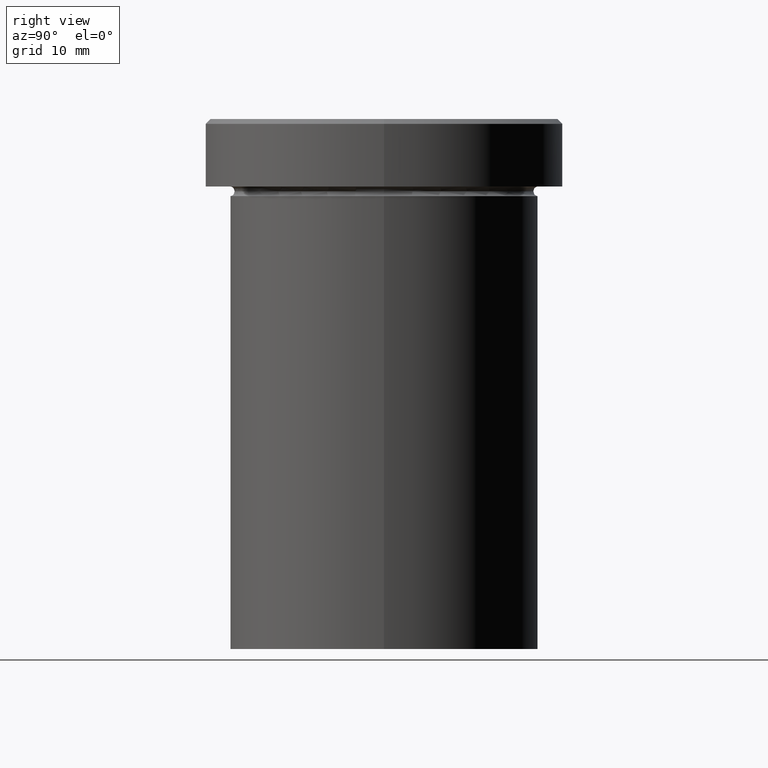
[diagram: clean part render]
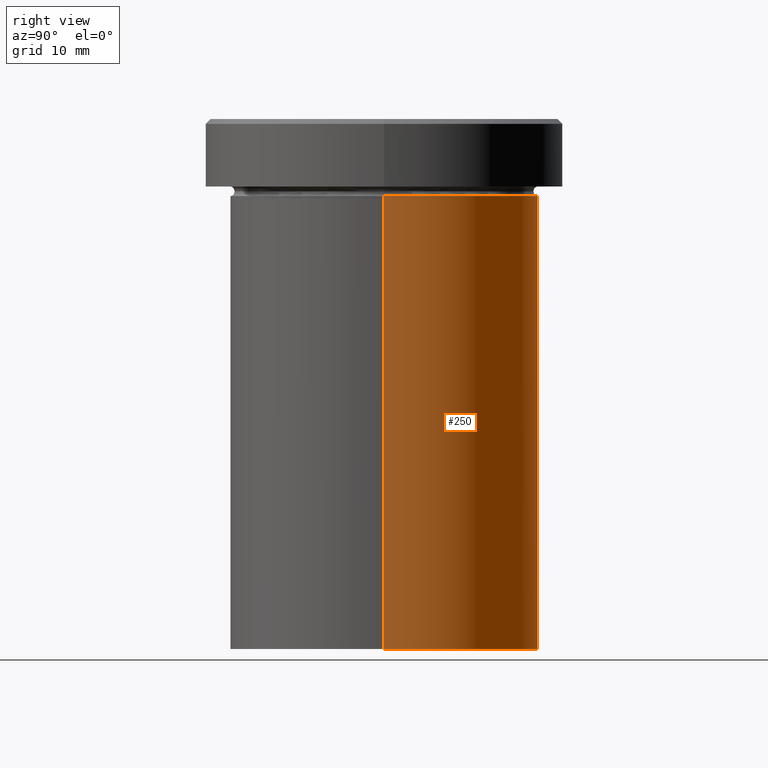
[diagram: same view with one face highlighted and labeled with its STEP entity id]
A machine part, right view. The second image highlights one B-rep face of the part: STEP entity #250.
In plain terms, the highlighted cylindrical surface (partial cylindrical patch) has radius 16 mm, axis along (-0, -0, 1).
Its self-contained STEP definition (entity closure, byte-faithful):
#12 = ORIENTED_EDGE ( 'NONE', *, *, #398, .T. ) ;
#14 = CYLINDRICAL_SURFACE ( 'NONE', #245, 16.00000000000000000 ) ;
#15 = ORIENTED_EDGE ( 'NONE', *, *, #108, .F. ) ;
#24 = VERTEX_POINT ( 'NONE', #365 ) ;
#30 = LINE ( 'NONE', #289, #280 ) ;
#52 = CIRCLE ( 'NONE', #55, 16.00000000000000000 ) ;
#55 = AXIS2_PLACEMENT_3D ( 'NONE', #263, #216, #154 ) ;
#59 = VECTOR ( 'NONE', #194, 1000.000000000000000 ) ;
#62 = EDGE_CURVE ( 'NONE', #136, #209, #30, .T. ) ;
#70 = CARTESIAN_POINT ( 'NONE',  ( 0.000000000000000000, 0.000000000000000000, -54.99999999999999289 ) ) ;
#73 = FACE_OUTER_BOUND ( 'NONE', #100, .T. ) ;
#89 = ORIENTED_EDGE ( 'NONE', *, *, #312, .T. ) ;
#93 = CARTESIAN_POINT ( 'NONE',  ( 16.00000000000000000, 0.000000000000000000, -8.000000000000000000 ) ) ;
#100 = EDGE_LOOP ( 'NONE', ( #12, #89, #15, #213 ) ) ;
#108 = EDGE_CURVE ( 'NONE', #209, #24, #52, .T. ) ;
#111 = DIRECTION ( 'NONE',  ( -0.000000000000000000, -0.000000000000000000, 1.000000000000000000 ) ) ;
#136 = VERTEX_POINT ( 'NONE', #247 ) ;
#152 = AXIS2_PLACEMENT_3D ( 'NONE', #70, #111, #211 ) ;
#154 = DIRECTION ( 'NONE',  ( 1.000000000000000000, 0.000000000000000000, 0.000000000000000000 ) ) ;
#158 = CIRCLE ( 'NONE', #152, 16.00000000000000000 ) ;
#194 = DIRECTION ( 'NONE',  ( -0.000000000000000000, -0.000000000000000000, 1.000000000000000000 ) ) ;
#209 = VERTEX_POINT ( 'NONE', #93 ) ;
#211 = DIRECTION ( 'NONE',  ( 1.000000000000000000, 0.000000000000000000, 0.000000000000000000 ) ) ;
#213 = ORIENTED_EDGE ( 'NONE', *, *, #62, .F. ) ;
#216 = DIRECTION ( 'NONE',  ( -0.000000000000000000, -0.000000000000000000, 1.000000000000000000 ) ) ;
#245 = AXIS2_PLACEMENT_3D ( 'NONE', #333, #327, #361 ) ;
#247 = CARTESIAN_POINT ( 'NONE',  ( 16.00000000000000000, 0.000000000000000000, -54.99999999999999289 ) ) ;
#250 = ADVANCED_FACE ( 'NONE', ( #73 ), #14, .T. ) ;
#252 = DIRECTION ( 'NONE',  ( -0.000000000000000000, -0.000000000000000000, 1.000000000000000000 ) ) ;
#254 = LINE ( 'NONE', #387, #59 ) ;
#263 = CARTESIAN_POINT ( 'NONE',  ( 0.000000000000000000, 0.000000000000000000, -8.000000000000000000 ) ) ;
#280 = VECTOR ( 'NONE', #252, 1000.000000000000000 ) ;
#289 = CARTESIAN_POINT ( 'NONE',  ( 16.00000000000000000, 0.000000000000000000, 0.000000000000000000 ) ) ;
#300 = CARTESIAN_POINT ( 'NONE',  ( -16.00000000000000000, 1.959434878635765131E-15, -54.99999999999999289 ) ) ;
#312 = EDGE_CURVE ( 'NONE', #325, #24, #254, .T. ) ;
#325 = VERTEX_POINT ( 'NONE', #300 ) ;
#327 = DIRECTION ( 'NONE',  ( -0.000000000000000000, -0.000000000000000000, 1.000000000000000000 ) ) ;
#333 = CARTESIAN_POINT ( 'NONE',  ( 0.000000000000000000, 0.000000000000000000, 0.000000000000000000 ) ) ;
#361 = DIRECTION ( 'NONE',  ( 1.000000000000000000, 0.000000000000000000, 0.000000000000000000 ) ) ;
#365 = CARTESIAN_POINT ( 'NONE',  ( -16.00000000000000000, 1.959434878635765131E-15, -8.000000000000000000 ) ) ;
#387 = CARTESIAN_POINT ( 'NONE',  ( -16.00000000000000000, 1.959434878635765131E-15, 0.000000000000000000 ) ) ;
#398 = EDGE_CURVE ( 'NONE', #136, #325, #158, .T. ) ;